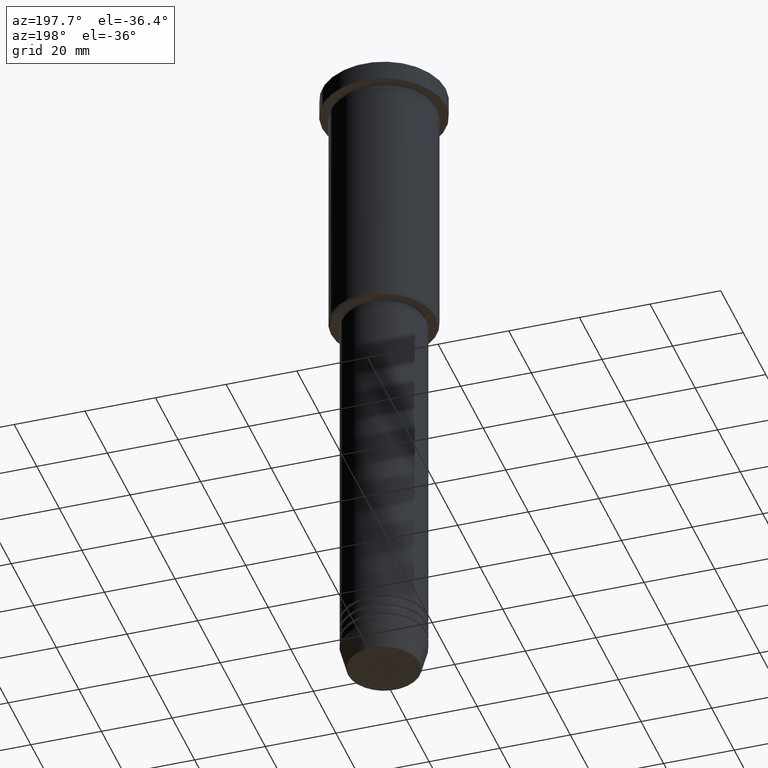
[diagram: clean part render]
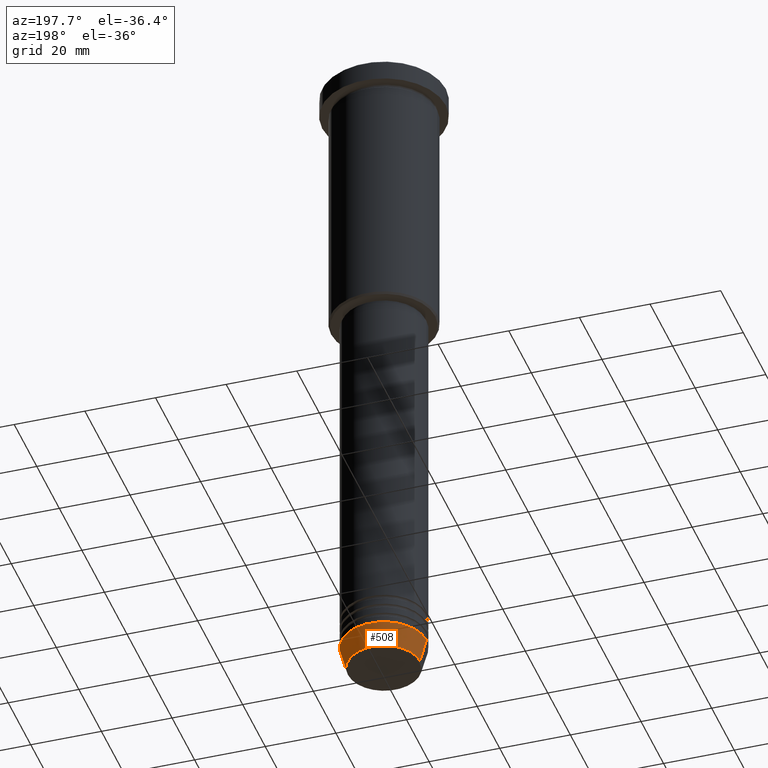
[diagram: same view with one face highlighted and labeled with its STEP entity id]
A machine part, auxiliary view. The second image highlights one B-rep face of the part: STEP entity #508.
In plain terms, the highlighted conical surface has half-angle 15 deg.
Its self-contained STEP definition (entity closure, byte-faithful):
#28 = FACE_OUTER_BOUND ( 'NONE', #666, .T. ) ;
#77 = AXIS2_PLACEMENT_3D ( 'NONE', #665, #306, #210 ) ;
#86 = ORIENTED_EDGE ( 'NONE', *, *, #283, .F. ) ;
#90 = VERTEX_POINT ( 'NONE', #91 ) ;
#91 = CARTESIAN_POINT ( 'NONE',  ( 10.22365507213719660, 0.000000000000000000, -190.6294095225512706 ) ) ;
#130 = DIRECTION ( 'NONE',  ( 1.000000000000000000, 0.000000000000000000, 0.000000000000000000 ) ) ;
#151 = CARTESIAN_POINT ( 'NONE',  ( -10.22365507213719837, 1.360806402472383336E-15, -190.6294095225512706 ) ) ;
#205 = EDGE_CURVE ( 'NONE', #1171, #837, #369, .T. ) ;
#210 = DIRECTION ( 'NONE',  ( 1.000000000000000000, 0.000000000000000000, 0.000000000000000000 ) ) ;
#283 = EDGE_CURVE ( 'NONE', #417, #837, #513, .T. ) ;
#292 = CARTESIAN_POINT ( 'NONE',  ( 12.00000000000000000, 0.000000000000000000, -184.0000000000000284 ) ) ;
#304 = ORIENTED_EDGE ( 'NONE', *, *, #205, .T. ) ;
#306 = DIRECTION ( 'NONE',  ( -0.000000000000000000, -0.000000000000000000, 1.000000000000000000 ) ) ;
#355 = VECTOR ( 'NONE', #652, 1000.000000000000000 ) ;
#369 = LINE ( 'NONE', #824, #355 ) ;
#417 = VERTEX_POINT ( 'NONE', #292 ) ;
#451 = DIRECTION ( 'NONE',  ( 1.000000000000000000, 0.000000000000000000, 0.000000000000000000 ) ) ;
#508 = ADVANCED_FACE ( 'NONE', ( #28 ), #830, .T. ) ;
#511 = DIRECTION ( 'NONE',  ( 0.2588190451025213501, 0.000000000000000000, 0.9659258262890680902 ) ) ;
#513 = CIRCLE ( 'NONE', #1059, 12.00000000000000000 ) ;
#532 = CARTESIAN_POINT ( 'NONE',  ( 0.000000000000000000, 0.000000000000000000, -184.0000000000000284 ) ) ;
#583 = CARTESIAN_POINT ( 'NONE',  ( -12.00000000000000000, 1.469576158976823947E-15, -184.0000000000000284 ) ) ;
#598 = EDGE_CURVE ( 'NONE', #90, #1171, #717, .T. ) ;
#652 = DIRECTION ( 'NONE',  ( -0.2588190451025213501, 3.169619151431772337E-17, 0.9659258262890680902 ) ) ;
#665 = CARTESIAN_POINT ( 'NONE',  ( 0.000000000000000000, 0.000000000000000000, -184.0000000000000284 ) ) ;
#666 = EDGE_LOOP ( 'NONE', ( #938, #304, #86, #927 ) ) ;
#683 = VECTOR ( 'NONE', #511, 1000.000000000000000 ) ;
#717 = CIRCLE ( 'NONE', #1074, 10.22365507213719660 ) ;
#795 = LINE ( 'NONE', #1055, #683 ) ;
#801 = CARTESIAN_POINT ( 'NONE',  ( 0.000000000000000000, 0.000000000000000000, -190.6294095225512706 ) ) ;
#824 = CARTESIAN_POINT ( 'NONE',  ( -12.00000000000000000, 1.469576158976823947E-15, -184.0000000000000284 ) ) ;
#830 = CONICAL_SURFACE ( 'NONE', #77, 12.00000000000000000, 0.2617993877991500740 ) ;
#837 = VERTEX_POINT ( 'NONE', #583 ) ;
#927 = ORIENTED_EDGE ( 'NONE', *, *, #1062, .F. ) ;
#938 = ORIENTED_EDGE ( 'NONE', *, *, #598, .T. ) ;
#973 = DIRECTION ( 'NONE',  ( -0.000000000000000000, -0.000000000000000000, 1.000000000000000000 ) ) ;
#1055 = CARTESIAN_POINT ( 'NONE',  ( 12.00000000000000000, 0.000000000000000000, -184.0000000000000284 ) ) ;
#1059 = AXIS2_PLACEMENT_3D ( 'NONE', #532, #1160, #451 ) ;
#1062 = EDGE_CURVE ( 'NONE', #90, #417, #795, .T. ) ;
#1074 = AXIS2_PLACEMENT_3D ( 'NONE', #801, #973, #130 ) ;
#1160 = DIRECTION ( 'NONE',  ( -0.000000000000000000, -0.000000000000000000, 1.000000000000000000 ) ) ;
#1171 = VERTEX_POINT ( 'NONE', #151 ) ;